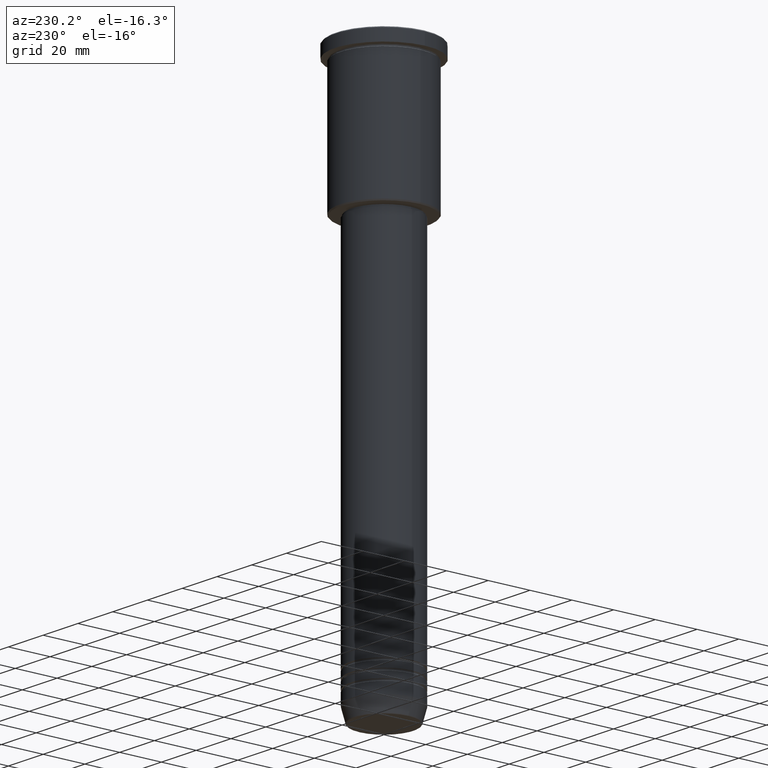
[diagram: clean part render]
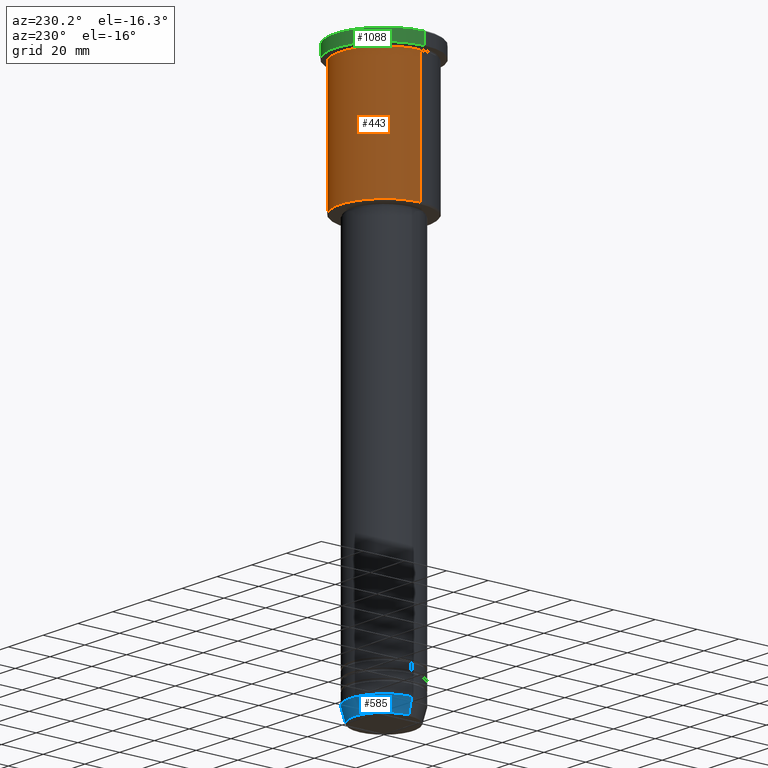
[diagram: same view with three faces highlighted in distinct colors, each labeled with its STEP entity id]
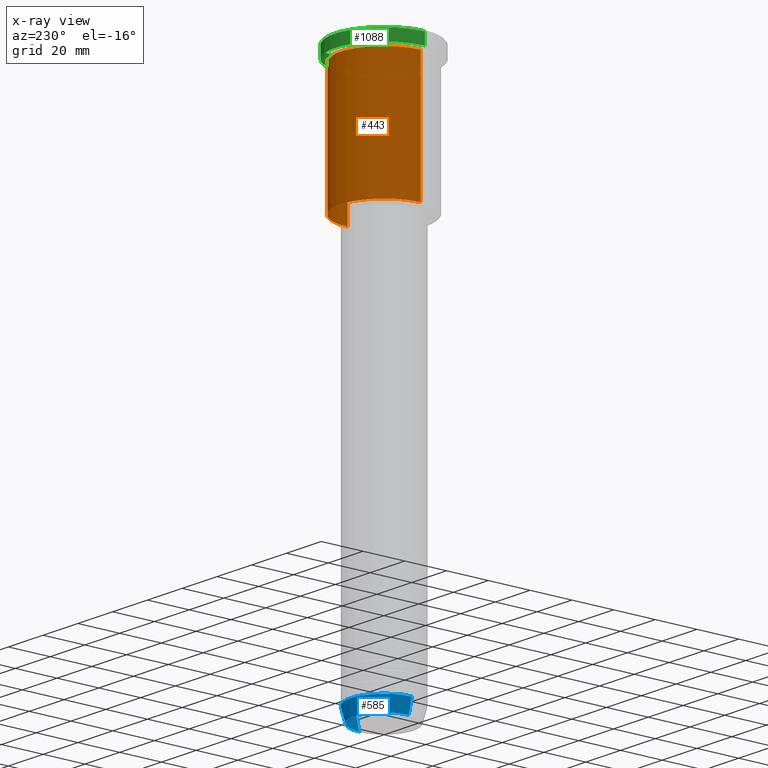
[diagram: x-ray of the same camera — body ghosted, the three highlighted faces saturated]
A machine part, auxiliary view with three faces highlighted in distinct colors.
The next image is the same camera in x-ray (body ghosted, the three faces saturated) — at least one of them is partly hidden behind the body in this view.
Their STEP definitions:

[orange] entity #443 — the highlighted cylindrical surface (partial cylindrical patch) has radius 21 mm, axis along (-0, -0, 1).
#2 = VECTOR ( 'NONE', #1080, 1000.000000000000000 ) ;
#15 = DIRECTION ( 'NONE',  ( 1.000000000000000000, 0.000000000000000000, 0.000000000000000000 ) ) ;
#30 = VERTEX_POINT ( 'NONE', #673 ) ;
#69 = DIRECTION ( 'NONE',  ( -1.000000000000000000, 0.000000000000000000, 0.000000000000000000 ) ) ;
#132 = AXIS2_PLACEMENT_3D ( 'NONE', #1163, #713, #69 ) ;
#146 = CARTESIAN_POINT ( 'NONE',  ( -21.00000000000000000, 2.571758278209441661E-15, 0.000000000000000000 ) ) ;
#187 = CARTESIAN_POINT ( 'NONE',  ( -21.00000000000000000, 2.571758278209441661E-15, -65.50000000000002842 ) ) ;
#200 = EDGE_CURVE ( 'NONE', #30, #963, #693, .T. ) ;
#223 = EDGE_CURVE ( 'NONE', #30, #872, #985, .T. ) ;
#229 = CARTESIAN_POINT ( 'NONE',  ( -21.00000000000000000, 2.571758278209441661E-15, -6.999999999999993783 ) ) ;
#247 = DIRECTION ( 'NONE',  ( -0.000000000000000000, -0.000000000000000000, 1.000000000000000000 ) ) ;
#264 = CIRCLE ( 'NONE', #671, 21.00000000000000000 ) ;
#292 = DIRECTION ( 'NONE',  ( 1.000000000000000000, 0.000000000000000000, 0.000000000000000000 ) ) ;
#425 = ORIENTED_EDGE ( 'NONE', *, *, #1136, .T. ) ;
#443 = ADVANCED_FACE ( 'NONE', ( #1002 ), #916, .T. ) ;
#518 = VERTEX_POINT ( 'NONE', #229 ) ;
#522 = ORIENTED_EDGE ( 'NONE', *, *, #223, .T. ) ;
#568 = CARTESIAN_POINT ( 'NONE',  ( 21.00000000000000000, 0.000000000000000000, -6.999999999999993783 ) ) ;
#572 = DIRECTION ( 'NONE',  ( -0.000000000000000000, -0.000000000000000000, 1.000000000000000000 ) ) ;
#671 = AXIS2_PLACEMENT_3D ( 'NONE', #1120, #572, #292 ) ;
#673 = CARTESIAN_POINT ( 'NONE',  ( 21.00000000000000000, 0.000000000000000000, -65.50000000000002842 ) ) ;
#684 = AXIS2_PLACEMENT_3D ( 'NONE', #921, #831, #15 ) ;
#693 = LINE ( 'NONE', #988, #2 ) ;
#713 = DIRECTION ( 'NONE',  ( -0.000000000000000000, -0.000000000000000000, 1.000000000000000000 ) ) ;
#831 = DIRECTION ( 'NONE',  ( -0.000000000000000000, -0.000000000000000000, 1.000000000000000000 ) ) ;
#872 = VERTEX_POINT ( 'NONE', #187 ) ;
#916 = CYLINDRICAL_SURFACE ( 'NONE', #684, 21.00000000000000000 ) ;
#921 = CARTESIAN_POINT ( 'NONE',  ( 0.000000000000000000, 0.000000000000000000, 0.000000000000000000 ) ) ;
#963 = VERTEX_POINT ( 'NONE', #568 ) ;
#985 = CIRCLE ( 'NONE', #132, 21.00000000000000000 ) ;
#988 = CARTESIAN_POINT ( 'NONE',  ( 21.00000000000000000, 0.000000000000000000, 0.000000000000000000 ) ) ;
#994 = ORIENTED_EDGE ( 'NONE', *, *, #200, .F. ) ;
#1002 = FACE_OUTER_BOUND ( 'NONE', #1091, .T. ) ;
#1037 = ORIENTED_EDGE ( 'NONE', *, *, #1075, .F. ) ;
#1075 = EDGE_CURVE ( 'NONE', #963, #518, #264, .T. ) ;
#1080 = DIRECTION ( 'NONE',  ( -0.000000000000000000, -0.000000000000000000, 1.000000000000000000 ) ) ;
#1091 = EDGE_LOOP ( 'NONE', ( #522, #425, #1037, #994 ) ) ;
#1120 = CARTESIAN_POINT ( 'NONE',  ( 0.000000000000000000, 0.000000000000000000, -6.999999999999993783 ) ) ;
#1136 = EDGE_CURVE ( 'NONE', #872, #518, #1139, .T. ) ;
#1139 = LINE ( 'NONE', #146, #1157 ) ;
#1157 = VECTOR ( 'NONE', #247, 1000.000000000000000 ) ;
#1163 = CARTESIAN_POINT ( 'NONE',  ( 0.000000000000000000, 0.000000000000000000, -65.50000000000002842 ) ) ;

[blue] entity #585 — the highlighted conical surface has half-angle 15 deg.
#7 = VECTOR ( 'NONE', #51, 1000.000000000000000 ) ;
#51 = DIRECTION ( 'NONE',  ( 0.2588190451025213501, 0.000000000000000000, 0.9659258262890680902 ) ) ;
#56 = CARTESIAN_POINT ( 'NONE',  ( 16.00000000000000000, 0.000000000000000000, -254.0000000000000000 ) ) ;
#89 = ORIENTED_EDGE ( 'NONE', *, *, #1108, .T. ) ;
#99 = AXIS2_PLACEMENT_3D ( 'NONE', #765, #381, #771 ) ;
#100 = ORIENTED_EDGE ( 'NONE', *, *, #480, .F. ) ;
#127 = VERTEX_POINT ( 'NONE', #366 ) ;
#145 = EDGE_LOOP ( 'NONE', ( #89, #665, #1013, #100 ) ) ;
#151 = DIRECTION ( 'NONE',  ( 1.000000000000000000, 0.000000000000000000, 0.000000000000000000 ) ) ;
#218 = DIRECTION ( 'NONE',  ( 1.000000000000000000, 0.000000000000000000, 0.000000000000000000 ) ) ;
#242 = CIRCLE ( 'NONE', #824, 14.22365507213718772 ) ;
#245 = LINE ( 'NONE', #797, #744 ) ;
#276 = AXIS2_PLACEMENT_3D ( 'NONE', #627, #517, #151 ) ;
#289 = VERTEX_POINT ( 'NONE', #56 ) ;
#297 = CIRCLE ( 'NONE', #99, 16.00000000000000000 ) ;
#366 = CARTESIAN_POINT ( 'NONE',  ( -16.00000000000000000, 1.959434878635765131E-15, -254.0000000000000000 ) ) ;
#381 = DIRECTION ( 'NONE',  ( -0.000000000000000000, -0.000000000000000000, 1.000000000000000000 ) ) ;
#390 = VERTEX_POINT ( 'NONE', #1171 ) ;
#400 = CARTESIAN_POINT ( 'NONE',  ( 16.00000000000000000, 0.000000000000000000, -254.0000000000000000 ) ) ;
#480 = EDGE_CURVE ( 'NONE', #390, #289, #792, .T. ) ;
#505 = CARTESIAN_POINT ( 'NONE',  ( -14.22365507213718772, 1.850665122131323337E-15, -260.6294095225512706 ) ) ;
#517 = DIRECTION ( 'NONE',  ( -0.000000000000000000, -0.000000000000000000, 1.000000000000000000 ) ) ;
#566 = EDGE_CURVE ( 'NONE', #799, #127, #245, .T. ) ;
#585 = ADVANCED_FACE ( 'NONE', ( #997 ), #804, .T. ) ;
#627 = CARTESIAN_POINT ( 'NONE',  ( 0.000000000000000000, 0.000000000000000000, -254.0000000000000000 ) ) ;
#665 = ORIENTED_EDGE ( 'NONE', *, *, #566, .T. ) ;
#744 = VECTOR ( 'NONE', #978, 1000.000000000000000 ) ;
#765 = CARTESIAN_POINT ( 'NONE',  ( 0.000000000000000000, 0.000000000000000000, -254.0000000000000000 ) ) ;
#771 = DIRECTION ( 'NONE',  ( 1.000000000000000000, 0.000000000000000000, 0.000000000000000000 ) ) ;
#792 = LINE ( 'NONE', #400, #7 ) ;
#797 = CARTESIAN_POINT ( 'NONE',  ( -16.00000000000000000, 1.959434878635765131E-15, -254.0000000000000000 ) ) ;
#799 = VERTEX_POINT ( 'NONE', #505 ) ;
#804 = CONICAL_SURFACE ( 'NONE', #276, 16.00000000000000000, 0.2617993877991500740 ) ;
#824 = AXIS2_PLACEMENT_3D ( 'NONE', #937, #1036, #218 ) ;
#937 = CARTESIAN_POINT ( 'NONE',  ( 0.000000000000000000, 0.000000000000000000, -260.6294095225512706 ) ) ;
#978 = DIRECTION ( 'NONE',  ( -0.2588190451025213501, 3.169619151431772337E-17, 0.9659258262890680902 ) ) ;
#997 = FACE_OUTER_BOUND ( 'NONE', #145, .T. ) ;
#1013 = ORIENTED_EDGE ( 'NONE', *, *, #1095, .F. ) ;
#1036 = DIRECTION ( 'NONE',  ( -0.000000000000000000, -0.000000000000000000, 1.000000000000000000 ) ) ;
#1095 = EDGE_CURVE ( 'NONE', #289, #127, #297, .T. ) ;
#1108 = EDGE_CURVE ( 'NONE', #390, #799, #242, .T. ) ;
#1171 = CARTESIAN_POINT ( 'NONE',  ( 14.22365507213718772, 0.000000000000000000, -260.6294095225512706 ) ) ;

[green] entity #1088 — the highlighted cylindrical surface (partial cylindrical patch) has radius 23.5 mm, axis along (-0, -0, 1).
#12 = DIRECTION ( 'NONE',  ( 1.000000000000000000, 0.000000000000000000, 0.000000000000000000 ) ) ;
#42 = VERTEX_POINT ( 'NONE', #228 ) ;
#76 = DIRECTION ( 'NONE',  ( -0.000000000000000000, -0.000000000000000000, 1.000000000000000000 ) ) ;
#106 = CARTESIAN_POINT ( 'NONE',  ( 23.50000000000000000, 0.000000000000000000, 0.000000000000000000 ) ) ;
#120 = CARTESIAN_POINT ( 'NONE',  ( 23.50000000000000000, 0.000000000000000000, -5.999999999999993783 ) ) ;
#123 = DIRECTION ( 'NONE',  ( -0.000000000000000000, -0.000000000000000000, 1.000000000000000000 ) ) ;
#176 = CARTESIAN_POINT ( 'NONE',  ( 0.000000000000000000, 0.000000000000000000, -0.4999999999999726885 ) ) ;
#209 = EDGE_LOOP ( 'NONE', ( #956, #1123, #623, #1033 ) ) ;
#212 = AXIS2_PLACEMENT_3D ( 'NONE', #1087, #76, #428 ) ;
#228 = CARTESIAN_POINT ( 'NONE',  ( -23.50000000000000000, 2.877919977996280320E-15, -0.4999999999999726885 ) ) ;
#279 = VECTOR ( 'NONE', #949, 1000.000000000000000 ) ;
#317 = CARTESIAN_POINT ( 'NONE',  ( 0.000000000000000000, 0.000000000000000000, 0.000000000000000000 ) ) ;
#393 = FACE_OUTER_BOUND ( 'NONE', #209, .T. ) ;
#410 = VERTEX_POINT ( 'NONE', #736 ) ;
#427 = CARTESIAN_POINT ( 'NONE',  ( -23.50000000000000000, 2.877919977996280320E-15, 0.000000000000000000 ) ) ;
#428 = DIRECTION ( 'NONE',  ( 1.000000000000000000, 0.000000000000000000, 0.000000000000000000 ) ) ;
#470 = AXIS2_PLACEMENT_3D ( 'NONE', #317, #123, #669 ) ;
#495 = LINE ( 'NONE', #106, #279 ) ;
#519 = VERTEX_POINT ( 'NONE', #120 ) ;
#534 = AXIS2_PLACEMENT_3D ( 'NONE', #176, #551, #12 ) ;
#551 = DIRECTION ( 'NONE',  ( 0.000000000000000000, 0.000000000000000000, -1.000000000000000000 ) ) ;
#593 = EDGE_CURVE ( 'NONE', #519, #974, #946, .T. ) ;
#623 = ORIENTED_EDGE ( 'NONE', *, *, #943, .T. ) ;
#635 = LINE ( 'NONE', #427, #989 ) ;
#669 = DIRECTION ( 'NONE',  ( 1.000000000000000000, 0.000000000000000000, 0.000000000000000000 ) ) ;
#736 = CARTESIAN_POINT ( 'NONE',  ( 23.50000000000000000, 0.000000000000000000, -0.4999999999999726885 ) ) ;
#753 = EDGE_CURVE ( 'NONE', #974, #42, #635, .T. ) ;
#759 = CARTESIAN_POINT ( 'NONE',  ( -23.50000000000000000, 2.877919977996280320E-15, -5.999999999999993783 ) ) ;
#779 = CYLINDRICAL_SURFACE ( 'NONE', #470, 23.50000000000000000 ) ;
#803 = DIRECTION ( 'NONE',  ( -0.000000000000000000, -0.000000000000000000, 1.000000000000000000 ) ) ;
#943 = EDGE_CURVE ( 'NONE', #42, #410, #992, .T. ) ;
#946 = CIRCLE ( 'NONE', #212, 23.50000000000000000 ) ;
#949 = DIRECTION ( 'NONE',  ( -0.000000000000000000, -0.000000000000000000, 1.000000000000000000 ) ) ;
#956 = ORIENTED_EDGE ( 'NONE', *, *, #593, .T. ) ;
#974 = VERTEX_POINT ( 'NONE', #759 ) ;
#983 = EDGE_CURVE ( 'NONE', #519, #410, #495, .T. ) ;
#989 = VECTOR ( 'NONE', #803, 1000.000000000000000 ) ;
#992 = CIRCLE ( 'NONE', #534, 23.50000000000000000 ) ;
#1033 = ORIENTED_EDGE ( 'NONE', *, *, #983, .F. ) ;
#1087 = CARTESIAN_POINT ( 'NONE',  ( 0.000000000000000000, 0.000000000000000000, -5.999999999999993783 ) ) ;
#1088 = ADVANCED_FACE ( 'NONE', ( #393 ), #779, .T. ) ;
#1123 = ORIENTED_EDGE ( 'NONE', *, *, #753, .T. ) ;